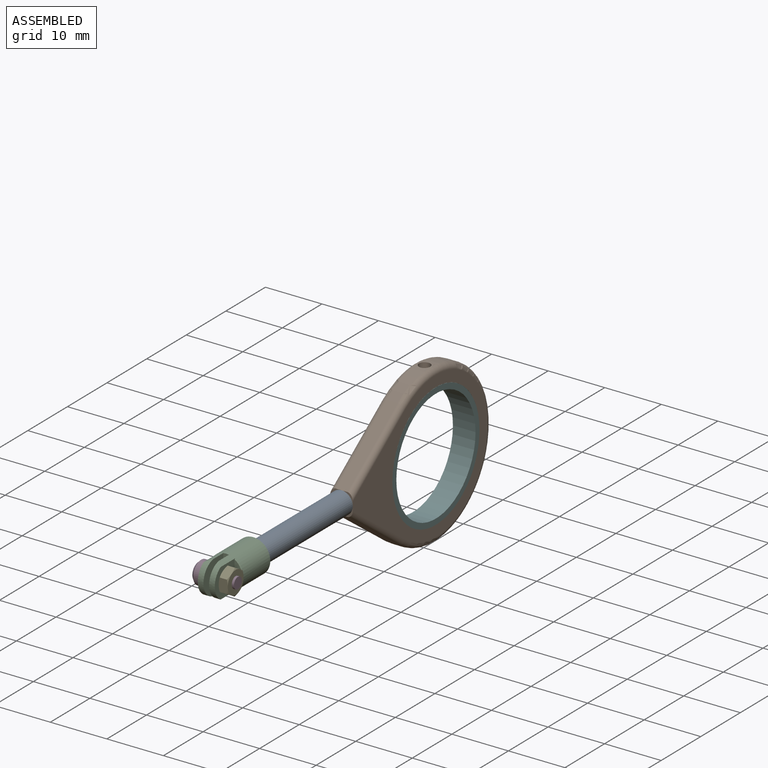
[diagram: assembled view]
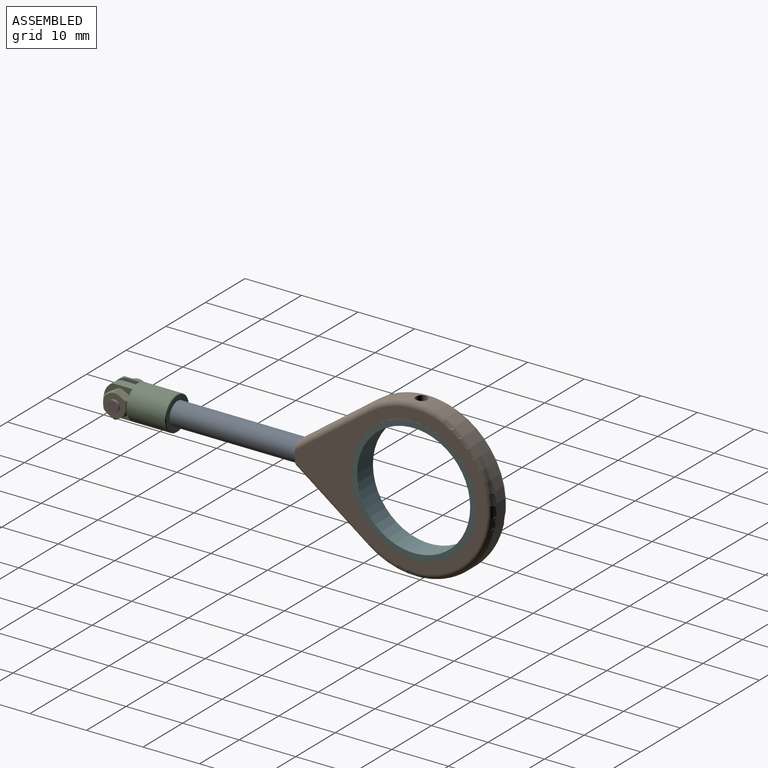
[diagram: assembled view, second angle]
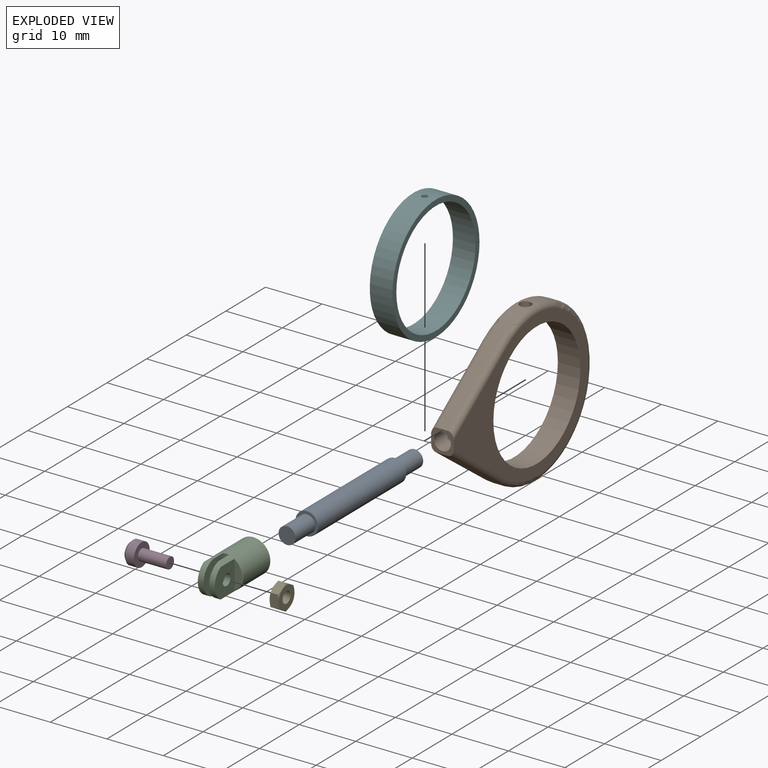
[diagram: exploded view]
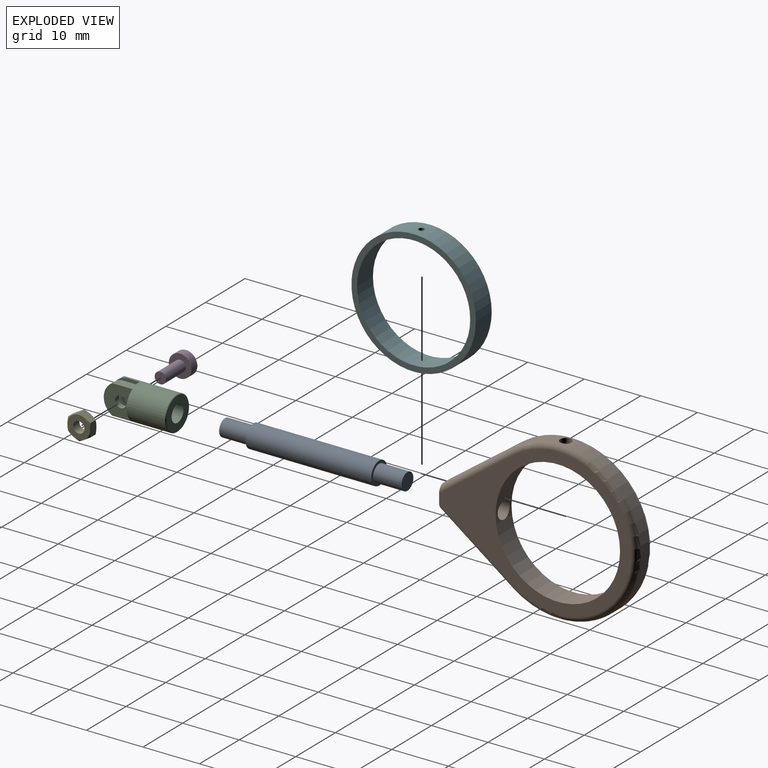
[diagram: exploded view, second angle]
ASSEMBLY  parts=6 mates=5
PART A: 7 faces, bbox 4x32.3x4 mm
  f0: cylinder r=1.5mm len=5mm, axis (0,1,0), area 47.1mm2, adj f1,f3
  f1: plane 3x3mm, normal (0,1,0), area 7.1mm2, adj f0
  f2: cylinder r=2mm len=22.25mm, axis (0,-1,0), area 279.6mm2, adj f3,f4
  f3: plane 4x4mm, normal (0,1,0), area 5.5mm2, adj f0,f2
  f4: plane 4x4mm, normal (0,-1,0), area 5.5mm2, adj f2,f6
  f5: plane 3x3mm, normal (0,-1,0), area 7.1mm2, adj f6
  f6: cylinder r=1.5mm len=5mm, axis (0,1,0), area 47.1mm2, adj f4,f5
PART B: 18 faces, bbox 4x36.7x30.3 mm
  f0: cylinder r=14mm len=28mm, axis (-1,0,0), area 104.1mm2, adj f4,f10,f13,f16
  f1: cylinder r=0.5mm len=1.01mm, axis (0,0,1), area 3.2mm2, adj f6,f11
  f2: plane 12.74x9.31mm, normal (0,-0.59,0.81), area 31.6mm2, adj f3,f5,f12,f15
  f3: plane 4x4mm, normal (0,-1,0), area 7.9mm2, adj f2,f4,f7,f8,f9,f12,f14,f15
  f4: plane 12.74x9.31mm, normal (0,-0.59,-0.81), area 31.6mm2, adj f0,f3,f14,f17
  f5: cylinder r=14mm len=8.26mm, axis (-1,0,0), area 16.1mm2, adj f2,f10,f13,f16
  f6: cylinder r=11mm len=22mm, axis (-1,0,0), area 268.6mm2, adj f1,f7,f8,f9
  f7: plane 34x26mm, normal (1,0,0), area 222.6mm2, adj f3,f6,f15,f16,f17
  f8: plane 34x26mm, normal (-1,0,0), area 222.6mm2, adj f3,f6,f12,f13,f14
  f9: cylinder r=1.5mm len=10.1mm, axis (0,-1,0), area 94.7mm2, adj f3,f6
  f10: cylinder r=1mm len=2mm, axis (0,0,1), area 12.5mm2, adj f0,f5,f11
  f11: plane 2x2mm, normal (0,0,1), area 2.4mm2, adj f1,f10
  f12: cylinder r=1mm len=13.92mm, axis (0,-0.81,-0.59), area 25.2mm2, adj f2,f3,f8,f13
  f13: torus R=13mm, axis (1,0,0), area 94.3mm2, adj f0,f5,f8,f12,f14
  f14: cylinder r=1mm len=13.92mm, axis (0,0.81,-0.59), area 25.2mm2, adj f3,f4,f8,f13
  f15: cylinder r=1mm len=13.92mm, axis (0,0.81,0.59), area 25.2mm2, adj f2,f3,f7,f16
  f16: torus R=13mm, axis (1,0,0), area 94.3mm2, adj f0,f5,f7,f15,f17
  f17: cylinder r=1mm len=13.92mm, axis (0,-0.81,0.59), area 25.2mm2, adj f3,f4,f7,f16
PART C: 18 faces, bbox 6x12x6 mm
  f0: cylinder r=3mm len=10.4mm, axis (0,-1,0), area 141.7mm2, adj f1,f2,f3,f4,f9,f11,f12,f15
  f1: plane 5.92x5mm, normal (-1,0,0), area 22.8mm2, adj f0,f9,f12,f14
  f2: plane 5.2x5.1mm, normal (1,0,0), area 20.6mm2, adj f0,f6,f12,f14,f15
  f3: plane 5.92x5mm, normal (1,0,0), area 22.8mm2, adj f0,f9,f11,f13
  f4: plane 5.2x5.1mm, normal (-1,0,0), area 20.6mm2, adj f0,f5,f11,f13,f16
  f5: plane 4.96x1.4mm, normal (0,-1,0), area 4.9mm2, adj f4,f16
  f6: plane 4.96x1.4mm, normal (0,-1,0), area 4.9mm2, adj f2,f15
  f7: cylinder r=1.5mm len=5mm, axis (0,-1,0), area 47.1mm2, adj f8,f10
  f8: plane 5.8x5.8mm, normal (0,1,0), area 19.4mm2, adj f7,f17
  f9: plane 6x1mm, normal (0,-1,0), area 6mm2, adj f0,f1,f3
  f10: plane 3x3mm, normal (0,1,0), area 7.1mm2, adj f7
  f11: cylinder r=3mm len=5.92mm, axis (1,0,0), area 7.4mm2, adj f0,f3,f4
  f12: cylinder r=3mm len=5.92mm, axis (1,0,0), area 7.4mm2, adj f0,f1,f2
  f13: cylinder r=1mm len=2mm, axis (1,0,0), area 6.3mm2, adj f3,f4
  f14: cylinder r=1mm len=2mm, axis (1,0,0), area 6.3mm2, adj f1,f2
  f15: cone r=2.9mm half-angle=45deg, axis (0,1,0), area 0.9mm2, adj f0,f2,f6
  f16: cone r=2.9mm half-angle=45deg, axis (0,1,0), area 0.9mm2, adj f0,f4,f5
  f17: cone r=3mm half-angle=45deg, axis (0,-1,0), area 2.6mm2, adj f0,f8
PART D: 6 faces, bbox 7x4x4 mm
  f0: cylinder r=1mm len=5mm, axis (-1,0,0), area 31.4mm2, adj f1,f4
  f1: plane 2x2mm, normal (1,0,0), area 3.1mm2, adj f0
  f2: cylinder r=2mm len=4mm, axis (1,0,0), area 18.8mm2, adj f4,f5
  f3: plane 3x3mm, normal (-1,0,0), area 7.1mm2, adj f5
  f4: plane 4x4mm, normal (1,0,0), area 9.4mm2, adj f0,f2
  f5: cone r=1.5mm half-angle=45deg, axis (1,0,0), area 7.8mm2, adj f2,f3
PART E: 21 faces, bbox 4.8x4.8x1.8 mm
  f0: plane 2.19x1.79mm, normal (-0.87,0.5,0), area 3.4mm2, adj f1,f5,f11,f12,f18,f19
  f1: plane 2.19x1.79mm, normal (-0.87,-0.5,0), area 3.4mm2, adj f0,f2,f12,f13,f17,f18
  f2: plane 2.5x1.79mm, normal (0,-1,0), area 3.4mm2, adj f1,f3,f13,f14,f16,f17
  f3: plane 2.19x1.79mm, normal (0.87,-0.5,0), area 3.4mm2, adj f2,f4,f9,f14,f15,f16
  f4: plane 2.19x1.79mm, normal (0.87,0.5,0), area 3.4mm2, adj f3,f5,f9,f10,f15,f20
  f5: plane 2.5x1.79mm, normal (0,1,0), area 3.4mm2, adj f0,f4,f10,f11,f19,f20
  f6: plane 4x4mm, normal (0,0,1), area 9.4mm2, adj f7,f9,f10,f11,f12,f13,f14
  f7: cylinder r=1mm len=2mm, axis (0,0,1), area 10.1mm2, adj f6,f8
  f8: plane 4x4mm, normal (0,0,-1), area 9.4mm2, adj f7,f15,f16,f17,f18,f19,f20
  f9: cone r=2mm half-angle=60deg, axis (0,0,-1), area 0.4mm2, adj f3,f4,f6
  f10: cone r=2mm half-angle=60deg, axis (0,0,-1), area 0.4mm2, adj f4,f5,f6
  f11: cone r=2mm half-angle=60deg, axis (0,0,-1), area 0.4mm2, adj f0,f5,f6
  f12: cone r=2mm half-angle=60deg, axis (0,0,-1), area 0.4mm2, adj f0,f1,f6
  f13: cone r=2mm half-angle=60deg, axis (0,0,-1), area 0.4mm2, adj f1,f2,f6
  f14: cone r=2mm half-angle=60deg, axis (0,0,-1), area 0.4mm2, adj f2,f3,f6
  f15: cone r=2mm half-angle=60deg, axis (0,0,1), area 0.4mm2, adj f3,f4,f8
  f16: cone r=2mm half-angle=60deg, axis (0,0,1), area 0.4mm2, adj f2,f3,f8
  f17: cone r=2mm half-angle=60deg, axis (0,0,1), area 0.4mm2, adj f1,f2,f8
  f18: cone r=2mm half-angle=60deg, axis (0,0,1), area 0.4mm2, adj f0,f1,f8
  f19: cone r=2mm half-angle=60deg, axis (0,0,1), area 0.4mm2, adj f0,f5,f8
  f20: cone r=2mm half-angle=60deg, axis (0,0,1), area 0.4mm2, adj f4,f5,f8
PART F: 5 faces, bbox 4x22x22 mm
  f0: cylinder r=10mm len=20mm, axis (-1,0,0), area 250.5mm2, adj f2,f3,f4
  f1: cylinder r=11mm len=22mm, axis (-1,0,0), area 275.7mm2, adj f2,f3,f4
  f2: plane 22x22mm, normal (1,0,0), area 66mm2, adj f0,f1
  f3: plane 22x22mm, normal (-1,0,0), area 66mm2, adj f0,f1
  f4: cylinder r=0.5mm len=1.01mm, axis (0,0,1), area 3.1mm2, adj f0,f1
PLACE A at identity
PLACE B at identity
PLACE C t=(0,0.1,0)mm
PLACE D t=(0,0.1,0)mm
PLACE E rot(axis=(0.71,0,-0.71),180deg) t=(1.5,-1.9,0)mm
PLACE F t=(0,0,-0.02)mm
MATE fastened D.f2 <-> C.f11  axis (-1,0,0) through (-1.5,-1.9,0)mm
MATE fastened B.f9 <-> A.f0  axis (0,-1,0) through (0,29.25,0)mm
MATE fastened C.f0 <-> A.f0  axis (0,-1,0) through (0,7,0)mm
MATE fastened E.f7 <-> C.f11  axis (-1,0,0) through (1.5,-1.9,0)mm
MATE fastened F.f4 <-> B.f1  axis (0,0,1) through (0,50.25,10.98)mm
